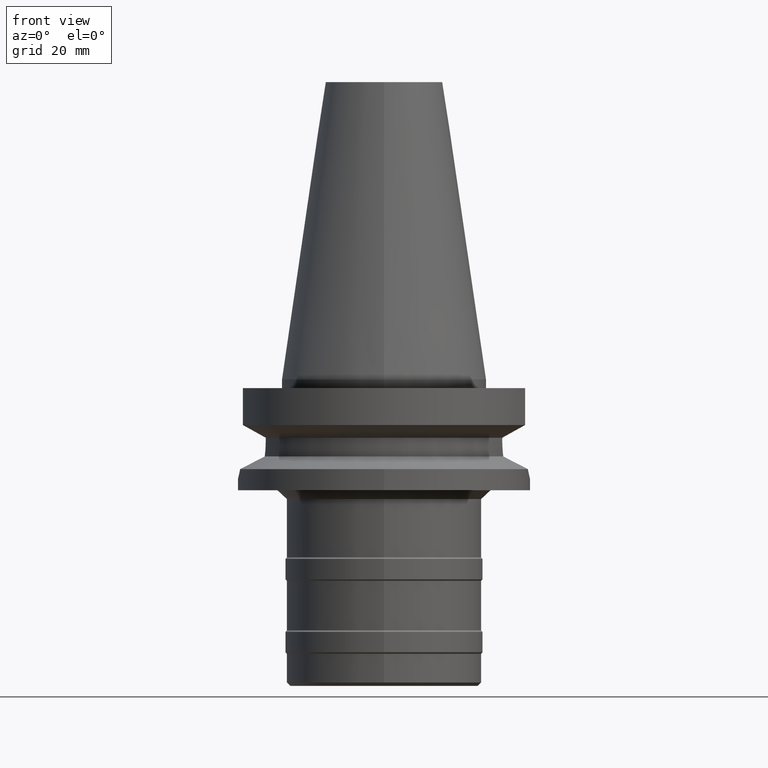
[diagram: clean part render]
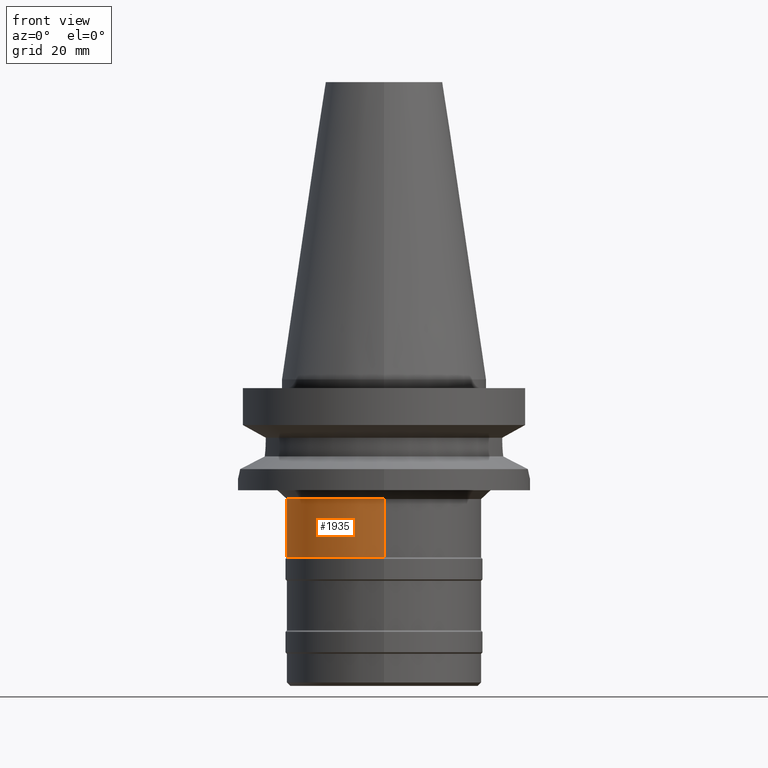
[diagram: same view with one face highlighted and labeled with its STEP entity id]
A machine part, front view. The second image highlights one B-rep face of the part: STEP entity #1935.
In plain terms, the highlighted cylindrical surface (partial cylindrical patch) has radius 33.5 mm, axis along (0, 0, -1).
Its self-contained STEP definition (entity closure, byte-faithful):
#525=CARTESIAN_POINT('',(0.E0,0.E0,-6.1E1));
#526=DIRECTION('',(0.E0,0.E0,1.E0));
#527=DIRECTION('',(0.E0,1.E0,0.E0));
#528=AXIS2_PLACEMENT_3D('',#525,#526,#527);
#548=DIRECTION('',(0.E0,0.E0,-1.E0));
#549=VECTOR('',#548,2.E1);
#550=CARTESIAN_POINT('',(0.E0,-3.35E1,-4.1E1));
#551=LINE('',#550,#549);
#555=DIRECTION('',(0.E0,0.E0,-1.E0));
#556=VECTOR('',#555,2.E1);
#557=CARTESIAN_POINT('',(0.E0,3.35E1,-4.1E1));
#558=LINE('',#557,#556);
#584=CARTESIAN_POINT('',(0.E0,0.E0,-4.1E1));
#585=DIRECTION('',(0.E0,0.E0,-1.E0));
#586=DIRECTION('',(0.E0,-1.E0,0.E0));
#587=AXIS2_PLACEMENT_3D('',#584,#585,#586);
#1314=CARTESIAN_POINT('',(0.E0,3.35E1,-6.1E1));
#1315=VERTEX_POINT('',#1314);
#1316=CARTESIAN_POINT('',(0.E0,-3.35E1,-6.1E1));
#1317=VERTEX_POINT('',#1316);
#1318=CARTESIAN_POINT('',(0.E0,3.35E1,-4.1E1));
#1319=VERTEX_POINT('',#1318);
#1320=CARTESIAN_POINT('',(0.E0,-3.35E1,-4.1E1));
#1321=VERTEX_POINT('',#1320);
#1921=CARTESIAN_POINT('',(0.E0,1.373318920564E-14,1.1214E2));
#1922=DIRECTION('',(0.E0,0.E0,-1.E0));
#1923=DIRECTION('',(0.E0,-1.E0,0.E0));
#1924=AXIS2_PLACEMENT_3D('',#1921,#1922,#1923);
#1925=CYLINDRICAL_SURFACE('',#1924,3.35E1);
#1927=ORIENTED_EDGE('',*,*,#1926,.F.);
#1929=ORIENTED_EDGE('',*,*,#1928,.F.);
#1931=ORIENTED_EDGE('',*,*,#1930,.T.);
#1932=ORIENTED_EDGE('',*,*,#1914,.F.);
#1933=EDGE_LOOP('',(#1927,#1929,#1931,#1932));
#1934=FACE_OUTER_BOUND('',#1933,.F.);
#529=CIRCLE('',#528,3.35E1);
#588=CIRCLE('',#587,3.35E1);
#1914=EDGE_CURVE('',#1315,#1317,#529,.T.);
#1926=EDGE_CURVE('',#1319,#1315,#558,.T.);
#1928=EDGE_CURVE('',#1321,#1319,#588,.T.);
#1930=EDGE_CURVE('',#1321,#1317,#551,.T.);
#1935=ADVANCED_FACE('',(#1934),#1925,.T.);